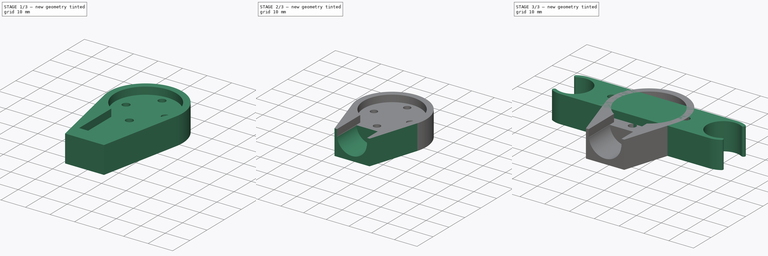
[diagram: build sequence overview — one tinted view per stage of 3, left to right]
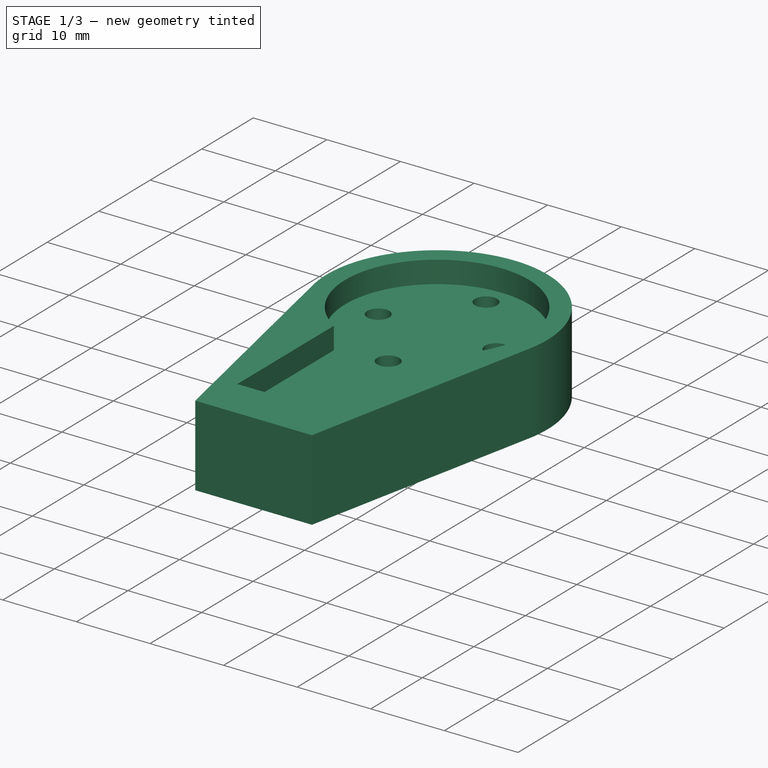
[diagram: stage 1 of 3 — iso view after this stage's code; geometry added in this stage tinted green]
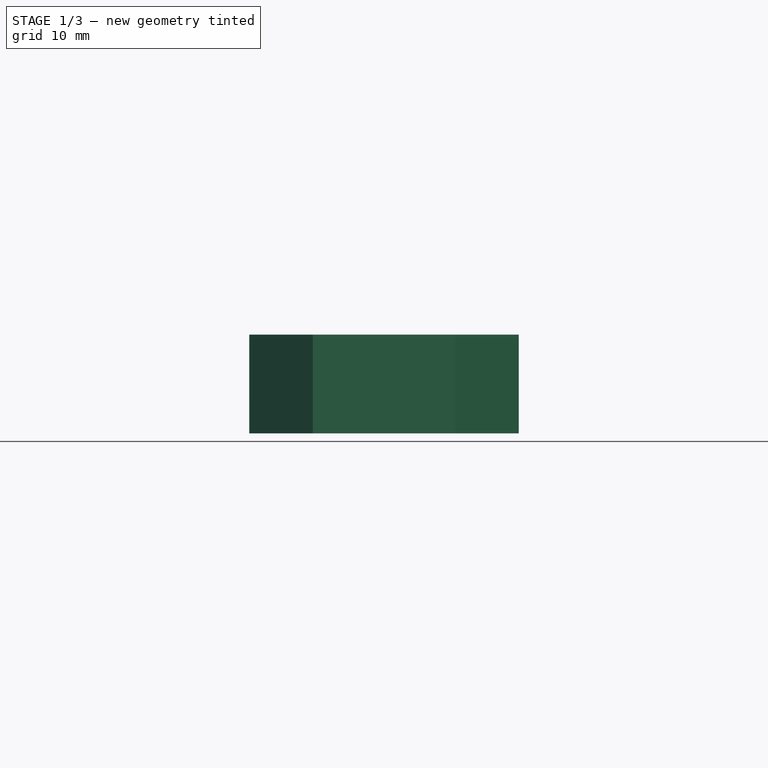
[diagram: stage 1 of 3 — front view after this stage's code; geometry added in this stage tinted green]
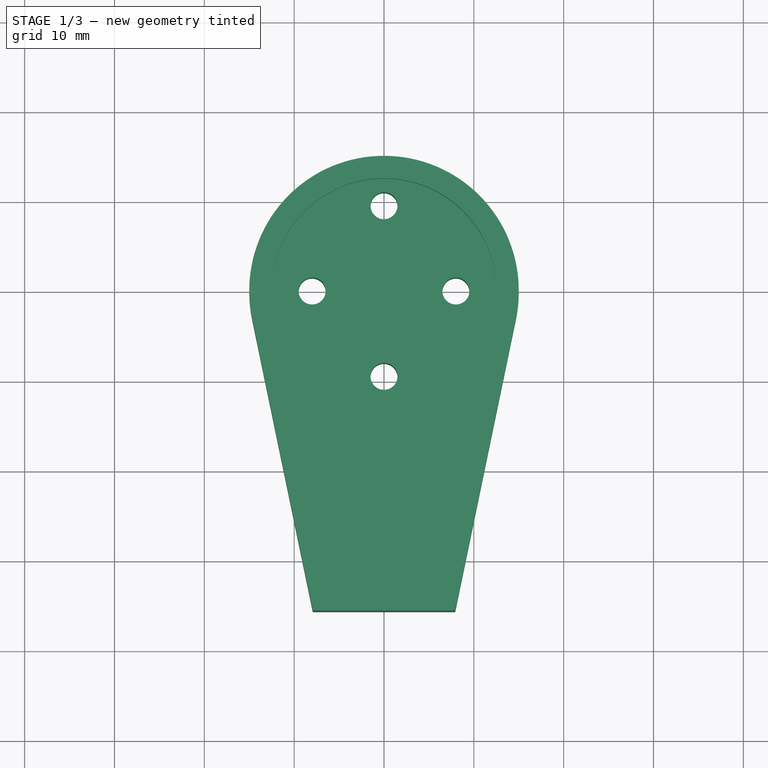
[diagram: stage 1 of 3 — top view after this stage's code; geometry added in this stage tinted green]
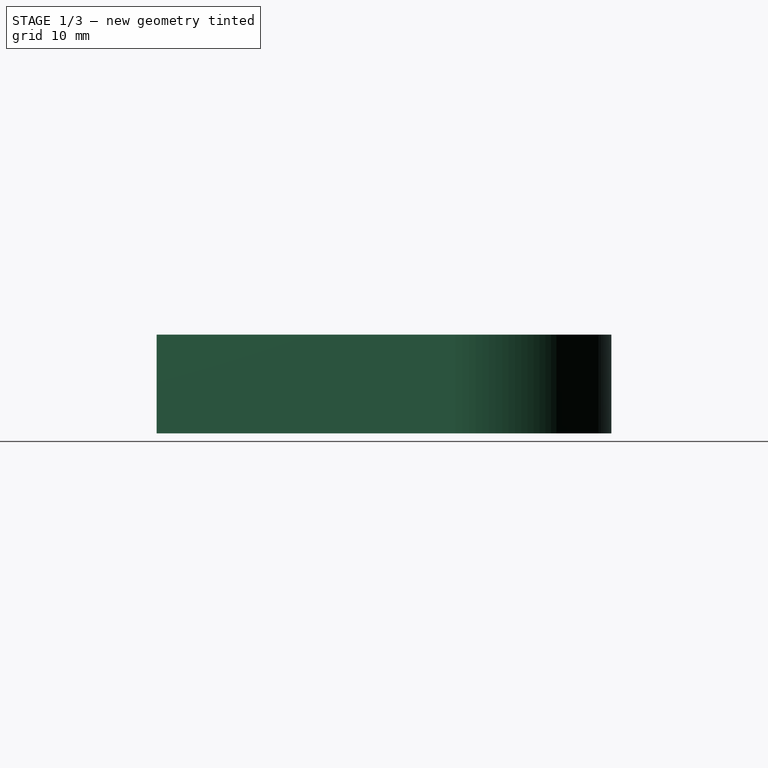
[diagram: stage 1 of 3 — right view after this stage's code; geometry added in this stage tinted green]
FCSTD DOCUMENT  (FreeCAD 1.1R14555 (Git shallow))
Label: drprt
License: All rights reserved
LicenseURL: http://en.wikipedia.org/wiki/All_rights_reserved
objects: Sketcher::SketchObject×6, App::Point×4, PartDesign::Body×4, PartDesign::Pad×3, PartDesign::Pocket×2
note: 31 computed .brp shape members not serialized (recipe doc carries the construction recipe); baked Part::Feature solids carry a one-line shape summary decoded from their .brp

FEATURE [App::Point] Origin001
  Role = Origin
FEATURE [Sketcher::SketchObject] Sketch
  ArcFitTolerance = 1e-06
  AttachmentSupport = -> [Origin]
  ExternalTypes = [0]
  FullyConstrained = false
  MakeInternals = false
  MapMode = 5
  sketch-geometry (18):
    g0: Circle [constr] CenterX=0 CenterY=0 CenterZ=0 NormalX=0 NormalY=0 NormalZ=1 AngleXU=0 Radius=8
    g1: Circle [constr] CenterX=0 CenterY=0 CenterZ=0 NormalX=0 NormalY=0 NormalZ=1 AngleXU=0 Radius=9.5
    g2: Circle [constr] CenterX=0 CenterY=0 CenterZ=0 NormalX=0 NormalY=0 NormalZ=1 AngleXU=0 Radius=25
    g3: Circle [constr] CenterX=0 CenterY=0 CenterZ=0 NormalX=0 NormalY=0 NormalZ=1 AngleXU=0 Radius=12.5
    g4: LineSegment [constr] StartX=-29.5503 StartY=0 StartZ=0 EndX=46.9819 EndY=0 EndZ=0
    g5: LineSegment [constr] StartX=0 StartY=29.8971 StartZ=0 EndX=0 EndY=-30.251 EndZ=0
    g6: Circle CenterX=-8 CenterY=0 CenterZ=0 NormalX=0 NormalY=0 NormalZ=1 AngleXU=0 Radius=1.5
    g7: Circle CenterX=8 CenterY=0 CenterZ=0 NormalX=0 NormalY=0 NormalZ=1 AngleXU=0 Radius=1.5
    g8: LineSegment [constr] StartX=0 StartY=29.8971 StartZ=0 EndX=0 EndY=-30.251 EndZ=0
    g9: Circle CenterX=0 CenterY=-9.5 CenterZ=0 NormalX=0 NormalY=0 NormalZ=1 AngleXU=0 Radius=1.5
    g10: Circle CenterX=0 CenterY=9.5 CenterZ=0 NormalX=0 NormalY=0 NormalZ=1 AngleXU=0 Radius=1.5
    g11: ArcOfCircle CenterX=0 CenterY=0 CenterZ=0 NormalX=0 NormalY=0 NormalZ=1 AngleXU=0 Radius=15 StartAngle=6.07867 EndAngle=9.62929
    g12: Circle [constr] CenterX=0 CenterY=-33.9752 CenterZ=0 NormalX=0 NormalY=0 NormalZ=1 AngleXU=0 Radius=6.6
    g13: ArcOfCircle [constr] CenterX=0 CenterY=-33.9752 CenterZ=0 NormalX=0 NormalY=0 NormalZ=1 AngleXU=0 Radius=8.1 StartAngle=6.07867 EndAngle=9.62929
    g14: LineSegment StartX=-14.6874 StartY=-3.04634 StartZ=0 EndX=-7.9312 EndY=-35.6203 EndZ=0
    g15: LineSegment StartX=14.6874 StartY=-3.04634 StartZ=0 EndX=7.9312 EndY=-35.6203 EndZ=0
    g16: LineSegment StartX=-7.9312 StartY=-35.6203 StartZ=0 EndX=7.9312 EndY=-35.6203 EndZ=0
    g17: Circle [constr] CenterX=0 CenterY=-17.8744 CenterZ=0 NormalX=0 NormalY=0 NormalZ=1 AngleXU=0 Radius=5.06673
  constraints (33):
    c: Coincident(g0,g-1)
    c: Coincident(g1,g0)
    c: Coincident(g2,g0)
    c: Diameter(g2) = 50
    c: Diameter(g1) = 19
    c: Diameter(g0) = 16
    c: Coincident(g3,g0)
    c: Diameter(g3) = 25
    c: PointOnObject(g4,g-1)
    c: PointOnObject(g4,g-1)
    c: PointOnObject(g5,g-2)
    c: PointOnObject(g5,g-2)
    c: PointOnObject(g6,g4)
    c: Diameter(g6) = 3
    c: PointOnObject(g6,g0)
    c: Diameter(g7) = 3
    c: PointOnObject(g9,g5)
    c: Diameter(g9) = 3
    c: PointOnObject(g9,g1)
    c: Diameter(g10) = 3
    c: Coincident(g11,g0)
    c: PointOnObject(g12,g-2)
    c: Coincident(g13,g12)
    c: Diameter(g12) = 13.2
    c: Coincident(g16,g14)
    c: Coincident(g16,g15)
    c: Tangent(g15,g13) = 1.5708
    c: Diameter(g13) = 16.2
    c: Tangent(g14,g13) = -1.5708
    c: Tangent(g14,g11) = -1.5708
    c: Diameter(g11) = 30
    c: Tangent(g15,g11) = 1.5708
    c: PointOnObject(g17,g5)
FEATURE [Sketcher::SketchObject] Sketch001  label="hold2"
  ArcFitTolerance = 1e-06
  AttachmentSupport = -> [Sketch]
  ExternalTypes = [0]
  FullyConstrained = false
  MakeInternals = false
  MapMode = 2
  sketch-geometry (18):
    g0: ArcOfCircle CenterX=30 CenterY=0 CenterZ=0 NormalX=0 NormalY=0 NormalZ=1 AngleXU=0 Radius=6.6 StartAngle=1.0472 EndAngle=5.23599
    g1: ArcOfCircle CenterX=-30 CenterY=1e-16 CenterZ=0 NormalX=0 NormalY=0 NormalZ=1 AngleXU=0 Radius=6.6 StartAngle=4.18879 EndAngle=8.37758
    g2: ArcOfCircle CenterX=-30 CenterY=1e-16 CenterZ=0 NormalX=0 NormalY=0 NormalZ=1 AngleXU=0 Radius=8.1 StartAngle=1.5708 EndAngle=2.0944
    g3: ArcOfCircle CenterX=30 CenterY=0 CenterZ=0 NormalX=0 NormalY=0 NormalZ=1 AngleXU=0 Radius=8.1 StartAngle=4.71239 EndAngle=5.23599
    g4: LineSegment StartX=-30 StartY=8.1 StartZ=0 EndX=30 EndY=8.1 EndZ=0
    g5: LineSegment StartX=-30 StartY=-8.1 StartZ=0 EndX=30 EndY=-8.1 EndZ=0
    g6: LineSegment [constr] StartX=-30 StartY=1e-16 StartZ=0 EndX=-37.9241 EndY=13.725 EndZ=0
    g7: LineSegment [constr] StartX=-30 StartY=1e-16 StartZ=0 EndX=-36.862 EndY=-11.8854 EndZ=0
    g8: LineSegment [constr] StartX=30 StartY=0 StartZ=0 EndX=34.781 EndY=8.28095 EndZ=0
    g9: LineSegment [constr] StartX=30 StartY=0 StartZ=0 EndX=36.0297 EndY=-10.4438 EndZ=0
    g10: ArcOfCircle CenterX=30 CenterY=0 CenterZ=0 NormalX=0 NormalY=0 NormalZ=1 AngleXU=0 Radius=8.1 StartAngle=1.0472 EndAngle=1.5708
    g11: ArcOfCircle CenterX=-30 CenterY=1e-16 CenterZ=0 NormalX=0 NormalY=0 NormalZ=1 AngleXU=0 Radius=8.1 StartAngle=4.18879 EndAngle=4.71239
    g12: ArcOfCircle CenterX=-33.675 CenterY=6.36529 CenterZ=0 NormalX=0 NormalY=0 NormalZ=1 AngleXU=0 Radius=0.75 StartAngle=2.0944 EndAngle=5.23599
    g13: ArcOfCircle CenterX=-33.675 CenterY=-6.36529 CenterZ=0 NormalX=0 NormalY=0 NormalZ=1 AngleXU=0 Radius=0.75 StartAngle=1.0472 EndAngle=4.18879
    g14: ArcOfCircle CenterX=33.675 CenterY=-6.36529 CenterZ=0 NormalX=0 NormalY=0 NormalZ=1 AngleXU=0 Radius=0.75 StartAngle=5.23599 EndAngle=8.37758
    g15: ArcOfCircle CenterX=33.675 CenterY=6.36529 CenterZ=0 NormalX=0 NormalY=0 NormalZ=1 AngleXU=0 Radius=0.75 StartAngle=4.18879 EndAngle=7.33038
    g16: Circle CenterX=-15 CenterY=0 CenterZ=0 NormalX=0 NormalY=0 NormalZ=1 AngleXU=0 Radius=1.5
    g17: Circle CenterX=15 CenterY=0 CenterZ=0 NormalX=0 NormalY=0 NormalZ=1 AngleXU=0 Radius=1.5
  constraints (46):
    c: PointOnObject(g0,g-1)
    c: DistanceX(g1,g0) = 60
    c: Symmetric(g1,g0,g-2)
    c: Coincident(g2,g1)
    c: Coincident(g3,g0)
    c: Horizontal(g4)
    c: Horizontal(g5)
    c: Coincident(g6,g1)
    c: Coincident(g7,g1)
    c: Coincident(g8,g0)
    c: Coincident(g9,g0)
    c: Angle(g-1,g8) = 1.0472
    c: Angle(g9,g-1) = 1.0472
    c: Angle(g6,g-1) = 1.0472
    c: Angle(g-1,g7) = 1.0472
    c: Tangent(g4,g2) = 1.5708
    c: Tangent(g5,g3) = -1.5708
    c: PointOnObject(g3,g9)
    c: PointOnObject(g10,g8)
    c: Coincident(g3,g10)
    c: PointOnObject(g0,g9)
    c: PointOnObject(g0,g8)
    c: Diameter(g2) = 16.2
    c: Equal(g2,g3)
    c: PointOnObject(g2,g6)
    c: PointOnObject(g11,g7)
    c: Coincident(g2,g11)
    c: Diameter(g1) = 13.2
    c: Equal(g1,g0)
    c: PointOnObject(g1,g6)
    c: PointOnObject(g1,g7)
    c: Tangent(g4,g10) = 1.5708
    c: Tangent(g5,g11) = -1.5708
    c: Coincident(g12,g1)
    c: Coincident(g13,g1)
    c: Coincident(g14,g3)
    c: Tangent(g15,g10) = -1.5708
    c: Tangent(g15,g0) = 1.5708
    c: Tangent(g14,g0) = 1.5708
    c: Tangent(g12,g2) = -1.5708
    c: Tangent(g13,g11) = -1.5708
    c: PointOnObject(g16,g-1)
    c: Diameter(g16) = 3
    c: Equal(g17,g16)
    c: DistanceX(g16,g17) = 30
    c: Symmetric(g16,g17,g-1)
FEATURE [Sketcher::SketchObject] Sketch002  label="hold1"
  ArcFitTolerance = 1e-06
  AttachmentSupport = -> [Sketch]
  ExternalTypes = [0]
  FullyConstrained = false
  MakeInternals = false
  MapMode = 2
  sketch-geometry (21):
    g0: ArcOfCircle [constr] CenterX=30 CenterY=0 CenterZ=0 NormalX=0 NormalY=0 NormalZ=1 AngleXU=0 Radius=6.6 StartAngle=1.0472 EndAngle=5.23599
    g1: ArcOfCircle CenterX=-30 CenterY=1e-16 CenterZ=0 NormalX=0 NormalY=0 NormalZ=1 AngleXU=0 Radius=6.6 StartAngle=4.18879 EndAngle=8.37758
    g2: ArcOfCircle CenterX=-30 CenterY=1e-16 CenterZ=0 NormalX=0 NormalY=0 NormalZ=1 AngleXU=0 Radius=8.1 StartAngle=1.5708 EndAngle=2.0944
    g3: ArcOfCircle [constr] CenterX=30 CenterY=0 CenterZ=0 NormalX=0 NormalY=0 NormalZ=1 AngleXU=0 Radius=8.1 StartAngle=4.71239 EndAngle=5.23599
    g4: LineSegment [constr] StartX=-30 StartY=8.1 StartZ=0 EndX=30 EndY=8.1 EndZ=0
    g5: LineSegment [constr] StartX=-30 StartY=-8.1 StartZ=0 EndX=30 EndY=-8.1 EndZ=0
    g6: LineSegment [constr] StartX=-30 StartY=1e-16 StartZ=0 EndX=-37.9241 EndY=13.725 EndZ=0
    g7: LineSegment [constr] StartX=-30 StartY=1e-16 StartZ=0 EndX=-36.862 EndY=-11.8854 EndZ=0
    g8: LineSegment [constr] StartX=30 StartY=0 StartZ=0 EndX=34.781 EndY=8.28095 EndZ=0
    g9: LineSegment [constr] StartX=30 StartY=0 StartZ=0 EndX=36.0297 EndY=-10.4438 EndZ=0
    g10: ArcOfCircle [constr] CenterX=30 CenterY=0 CenterZ=0 NormalX=0 NormalY=0 NormalZ=1 AngleXU=0 Radius=8.1 StartAngle=1.0472 EndAngle=1.5708
    g11: ArcOfCircle CenterX=-30 CenterY=1e-16 CenterZ=0 NormalX=0 NormalY=0 NormalZ=1 AngleXU=0 Radius=8.1 StartAngle=4.18879 EndAngle=4.71239
    g12: ArcOfCircle CenterX=-33.675 CenterY=6.36529 CenterZ=0 NormalX=0 NormalY=0 NormalZ=1 AngleXU=0 Radius=0.75 StartAngle=2.0944 EndAngle=5.23599
    g13: ArcOfCircle CenterX=-33.675 CenterY=-6.36529 CenterZ=0 NormalX=0 NormalY=0 NormalZ=1 AngleXU=0 Radius=0.75 StartAngle=1.0472 EndAngle=4.18879
    g14: ArcOfCircle [constr] CenterX=33.675 CenterY=-6.36529 CenterZ=0 NormalX=0 NormalY=0 NormalZ=1 AngleXU=0 Radius=0.75 StartAngle=5.23599 EndAngle=8.37758
    g15: ArcOfCircle [constr] CenterX=33.675 CenterY=6.36529 CenterZ=0 NormalX=0 NormalY=0 NormalZ=1 AngleXU=0 Radius=0.75 StartAngle=4.18879 EndAngle=7.33038
    g16: Circle CenterX=-19 CenterY=0 CenterZ=0 NormalX=0 NormalY=0 NormalZ=1 AngleXU=0 Radius=1.5
    g17: Circle CenterX=-4 CenterY=0 CenterZ=0 NormalX=0 NormalY=0 NormalZ=1 AngleXU=0 Radius=1.5
    g18: LineSegment StartX=0 StartY=8.1 StartZ=0 EndX=0 EndY=-8.1 EndZ=0
    g19: LineSegment StartX=-30 StartY=8.1 StartZ=0 EndX=0 EndY=8.1 EndZ=0
    g20: LineSegment StartX=-30 StartY=-8.1 StartZ=0 EndX=0 EndY=-8.1 EndZ=0
  constraints (56):
    c: PointOnObject(g0,g-1)
    c: DistanceX(g1,g0) = 60
    c: Symmetric(g1,g0,g-2)
    c: Coincident(g2,g1)
    c: Coincident(g3,g0)
    c: Horizontal(g4)
    c: Horizontal(g5)
    c: Coincident(g6,g1)
    c: Coincident(g7,g1)
    c: Coincident(g8,g0)
    c: Coincident(g9,g0)
    c: Angle(g-1,g8) = 1.0472
    c: Angle(g9,g-1) = 1.0472
    c: Angle(g6,g-1) = 1.0472
    c: Angle(g-1,g7) = 1.0472
    c: Tangent(g4,g2) = 1.5708
    c: Tangent(g5,g3) = -1.5708
    c: PointOnObject(g3,g9)
    c: PointOnObject(g10,g8)
    c: Coincident(g3,g10)
    c: PointOnObject(g0,g9)
    c: PointOnObject(g0,g8)
    c: Diameter(g2) = 16.2
    c: Equal(g2,g3)
    c: PointOnObject(g2,g6)
    c: PointOnObject(g11,g7)
    c: Coincident(g2,g11)
    c: Diameter(g1) = 13.2
    c: Equal(g1,g0)
    c: PointOnObject(g1,g6)
    c: PointOnObject(g1,g7)
    c: Tangent(g4,g10) = 1.5708
    c: Tangent(g5,g11) = -1.5708
    c: Coincident(g12,g1)
    c: Coincident(g13,g1)
    c: Coincident(g14,g3)
    c: Tangent(g15,g10) = -1.5708
    c: Tangent(g15,g0) = 1.5708
    c: Tangent(g14,g0) = 1.5708
    c: Tangent(g12,g2) = -1.5708
    c: Tangent(g13,g11) = -1.5708
    c: PointOnObject(g16,g-1)
    c: Diameter(g16) = 3
    c: Equal(g17,g16)
    c: DistanceX(g16,g17) = 15
    c: Symmetric(g16,g17,g-1)
    c: PointOnObject(g18,g5)
    c: DistanceX(g17,g-1) = 4
    c: PointOnObject(g17,g-1)
    c: Tangent(g19,g2) = 1.5708
    c: Coincident(g19,g18)
    c: Coincident(g20,g5)
    c: Coincident(g20,g18)
    c: Horizontal(g20)
    c: Tangent(g20,g11)
    c: Block(g18)
FEATURE [Sketcher::SketchObject] Sketch003  label="holdtip"
  ArcFitTolerance = 1e-06
  AttachmentSupport = -> [Sketch]
  ExternalTypes = [0]
  FullyConstrained = false
  MakeInternals = false
  MapMode = 2
  sketch-geometry (16):
    g0: ArcOfCircle [constr] CenterX=15 CenterY=0 CenterZ=0 NormalX=0 NormalY=0 NormalZ=1 AngleXU=0 Radius=6.6 StartAngle=1.0472 EndAngle=5.23599
    g1: ArcOfCircle CenterX=-15 CenterY=0 CenterZ=0 NormalX=0 NormalY=0 NormalZ=1 AngleXU=0 Radius=6.6 StartAngle=3.14716 EndAngle=9.43035
    g2: ArcOfCircle CenterX=-15 CenterY=0 CenterZ=0 NormalX=0 NormalY=0 NormalZ=1 AngleXU=0 Radius=8.1 StartAngle=1.5708 EndAngle=4.71239
    g3: ArcOfCircle [constr] CenterX=15 CenterY=0 CenterZ=0 NormalX=0 NormalY=0 NormalZ=1 AngleXU=0 Radius=8.1 StartAngle=4.71239 EndAngle=5.23599
    g4: LineSegment [constr] StartX=-15 StartY=8.1 StartZ=0 EndX=15 EndY=8.1 EndZ=0
    g5: LineSegment [constr] StartX=-15 StartY=-8.1 StartZ=0 EndX=15 EndY=-8.1 EndZ=0
    g6: LineSegment [constr] StartX=15 StartY=0 StartZ=0 EndX=23.3018 EndY=14.3791 EndZ=0
    g7: LineSegment [constr] StartX=15 StartY=0 StartZ=0 EndX=20.9929 EndY=-10.38 EndZ=0
    g8: ArcOfCircle [constr] CenterX=15 CenterY=0 CenterZ=0 NormalX=0 NormalY=0 NormalZ=1 AngleXU=0 Radius=8.1 StartAngle=1.0472 EndAngle=1.5708
    g9: ArcOfCircle [constr] CenterX=18.675 CenterY=-6.36529 CenterZ=0 NormalX=0 NormalY=0 NormalZ=1 AngleXU=0 Radius=0.75 StartAngle=5.23599 EndAngle=8.37758
    g10: ArcOfCircle [constr] CenterX=18.675 CenterY=6.36529 CenterZ=0 NormalX=0 NormalY=0 NormalZ=1 AngleXU=0 Radius=0.75 StartAngle=4.18879 EndAngle=7.33038
    g11: Circle [constr] CenterX=-19 CenterY=0 CenterZ=0 NormalX=0 NormalY=0 NormalZ=1 AngleXU=0 Radius=1.5
    g12: Circle CenterX=-4 CenterY=0 CenterZ=0 NormalX=0 NormalY=0 NormalZ=1 AngleXU=0 Radius=1.5
    g13: LineSegment StartX=0 StartY=8.1 StartZ=0 EndX=0 EndY=-8.1 EndZ=0
    g14: LineSegment StartX=-15 StartY=8.1 StartZ=0 EndX=0 EndY=8.1 EndZ=0
    g15: LineSegment StartX=-15 StartY=-8.1 StartZ=0 EndX=0 EndY=-8.1 EndZ=0
  constraints (41):
    c: PointOnObject(g0,g-1)
    c: DistanceX(g1,g0) = 30
    c: Symmetric(g1,g0,g-2)
    c: Coincident(g2,g1)
    c: Coincident(g3,g0)
    c: Horizontal(g4)
    c: Horizontal(g5)
    c: Coincident(g6,g0)
    c: Coincident(g7,g0)
    c: Angle(g-1,g6) = 1.0472
    c: Angle(g7,g-1) = 1.0472
    c: Tangent(g4,g2) = 1.5708
    c: Tangent(g5,g3) = -1.5708
    c: PointOnObject(g3,g7)
    c: PointOnObject(g8,g6)
    c: Coincident(g3,g8)
    c: PointOnObject(g0,g7)
    c: PointOnObject(g0,g6)
    c: Diameter(g2) = 16.2
    c: Equal(g2,g3)
    c: Diameter(g1) = 13.2
    c: Equal(g1,g0)
    c: Tangent(g4,g8) = 1.5708
    c: Coincident(g9,g3)
    c: Tangent(g10,g8) = -1.5708
    c: Tangent(g10,g0) = 1.5708
    c: Tangent(g9,g0) = 1.5708
    c: PointOnObject(g11,g-1)
    c: Diameter(g11) = 3
    c: Equal(g12,g11)
    c: DistanceX(g11,g12) = 15
    c: Symmetric(g11,g12,g-1)
    c: PointOnObject(g13,g5)
    c: DistanceX(g12,g-1) = 4
    c: PointOnObject(g12,g-1)
    c: Tangent(g14,g2) = 1.5708
    c: Coincident(g14,g13)
    c: Coincident(g15,g5)
    c: Coincident(g15,g13)
    c: Block(g13)
    c: Coincident(g2,g5)
FEATURE [PartDesign::Pad] Pad
  Direction = (0,0,1)
  Length = 11
  Length2 = 10
  Profile = -> Sketch
  ReferenceAxis = -> Sketch [N_Axis]
  Refine = true
  SideType = 0
  Suppressed = false
  Type = 0
  Type2 = 0
FEATURE [PartDesign::Body] Body003  label="Arm rotate"
  AllowCompound = false
  Group = -> [Sketch003,Pad002]
  Origin = -> Origin010
  Tip = -> Pad002
FEATURE [Sketcher::SketchObject] Sketch004
  ArcFitTolerance = 1e-06
  AttachmentSupport = -> [Pad]
  ExternalTypes = [0]
  FullyConstrained = false
  MakeInternals = false
  MapMode = 5
  Placement = pos=(0,0,11) rot=(0,0,1;0rad)
  sketch-geometry (6):
    g0: Circle CenterX=0 CenterY=0 CenterZ=0 NormalX=0 NormalY=0 NormalZ=1 AngleXU=0 Radius=12.5
    g1: LineSegment StartX=-6.6 StartY=-29.3395 StartZ=0 EndX=6.6 EndY=-29.3395 EndZ=0
    g2: LineSegment StartX=6.6 StartY=-29.3395 StartZ=0 EndX=6.6 EndY=4.33954 EndZ=0
    g3: LineSegment StartX=6.6 StartY=4.33954 StartZ=0 EndX=-6.6 EndY=4.33954 EndZ=0
    g4: LineSegment StartX=-6.6 StartY=4.33954 StartZ=0 EndX=-6.6 EndY=-29.3395 EndZ=0
    g5: GeomPoint [constr] X=0 Y=-12.5 Z=0
  constraints (14):
    c: Coincident(g0,g-1)
    c: Coincident(g1,g2)
    c: Coincident(g2,g3)
    c: Coincident(g3,g4)
    c: Coincident(g4,g1)
    c: Horizontal(g1)
    c: Horizontal(g3)
    c: Vertical(g2)
    c: Vertical(g4)
    c: Symmetric(g3,g1,g5)
    c: PointOnObject(g5,g0)
    c: DistanceX(g3,g3) = 13.2
    c: Diameter(g0) = 25
    c: PointOnObject(g5,g-2)
FEATURE [PartDesign::Pocket] Pocket
  BaseFeature = -> Pad
  Direction = (0,0,-1)
  Length = 3
  Length2 = 5
  Profile = -> Sketch004
  ReferenceAxis = -> Sketch004 [N_Axis]
  Refine = true
  SideType = 0
  Suppressed = false
  Type = 0
  Type2 = 0
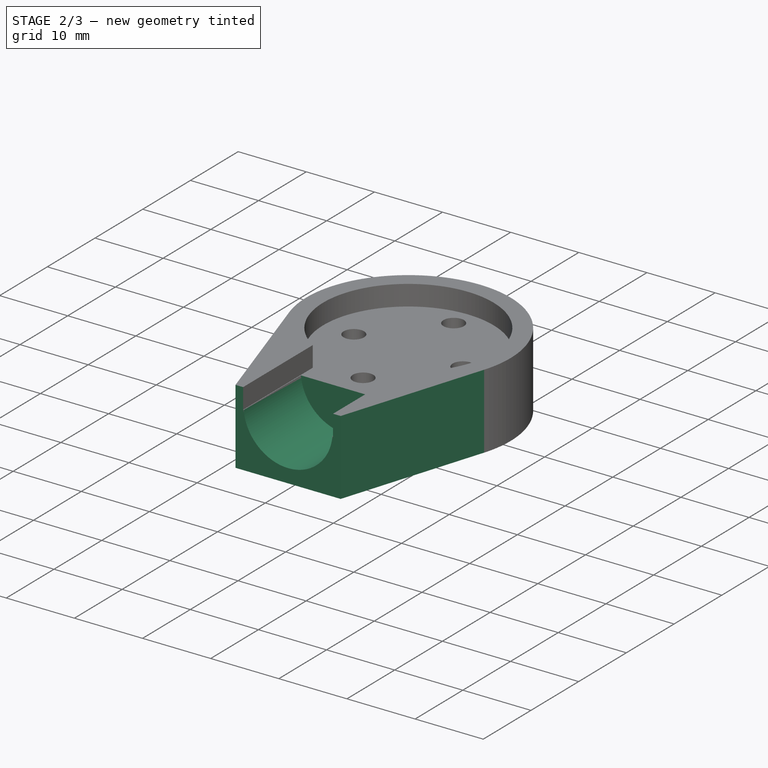
[diagram: stage 2 of 3 — iso view after this stage's code; geometry added in this stage tinted green]
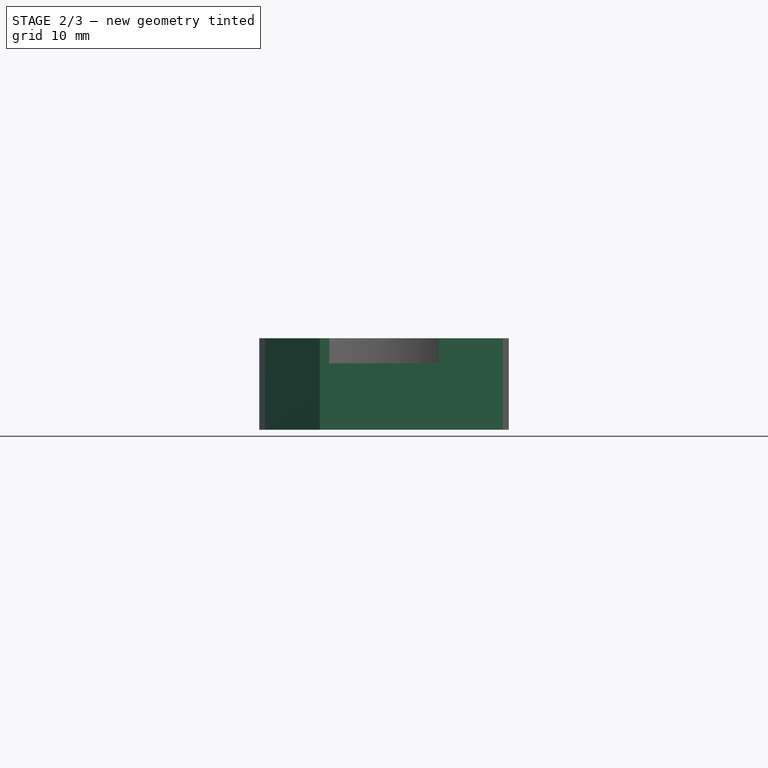
[diagram: stage 2 of 3 — front view after this stage's code; geometry added in this stage tinted green]
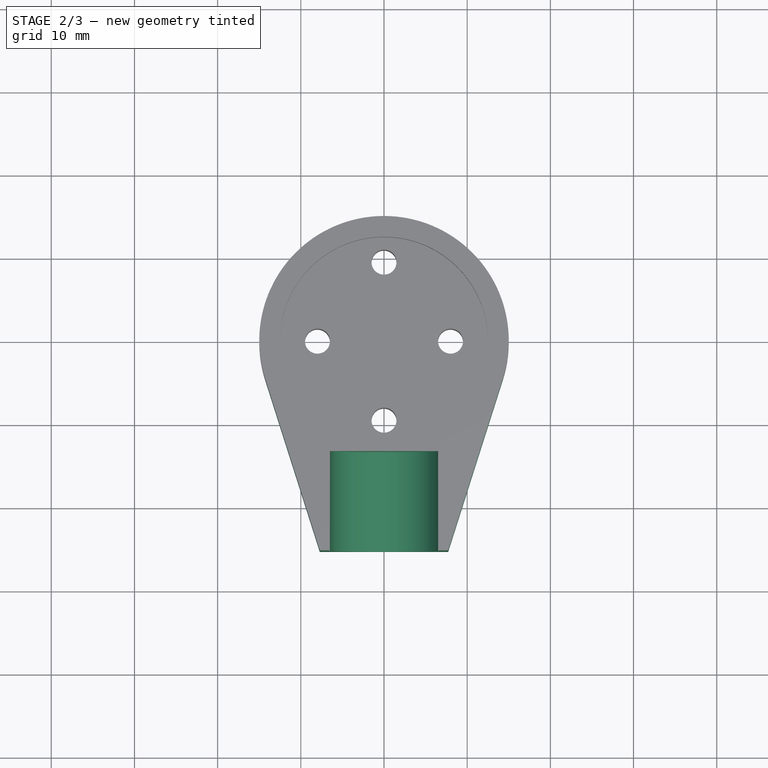
[diagram: stage 2 of 3 — top view after this stage's code; geometry added in this stage tinted green]
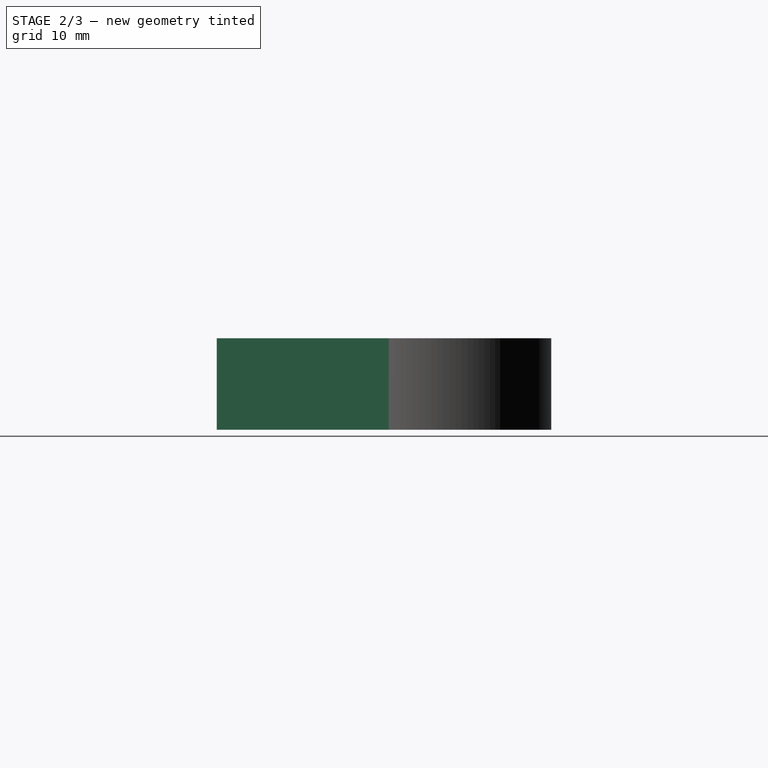
[diagram: stage 2 of 3 — right view after this stage's code; geometry added in this stage tinted green]
FEATURE [Sketcher::SketchObject] Sketch005
  ArcFitTolerance = 1e-06
  AttachmentSupport = -> [Pocket]
  ExternalTypes = [0]
  FullyConstrained = false
  MakeInternals = false
  MapMode = 5
  Placement = pos=(1.16e-14,-25.2157,0) rot=(1,0,0;1.5708rad)
  sketch-geometry (1):
    g0: Circle CenterX=0 CenterY=8.5528 CenterZ=0 NormalX=0 NormalY=0 NormalZ=1 AngleXU=0 Radius=6.53238
  constraints (1):
    c: PointOnObject(g0,g-2)
FEATURE [PartDesign::Pocket] Pocket001
  BaseFeature = -> Pocket
  Direction = (0,1,-2e-16)
  Length = 12
  Length2 = 5
  Profile = -> Sketch005
  ReferenceAxis = -> Sketch005 [N_Axis]
  Refine = true
  SideType = 0
  Suppressed = false
  Type = 0
  Type2 = 0
FEATURE [PartDesign::Body] Body
  AllowCompound = false
  Group = -> [Sketch,Pad,Sketch004,Pocket,Sketch005,Pocket001]
  Origin = -> Origin
  Tip = -> Pocket001
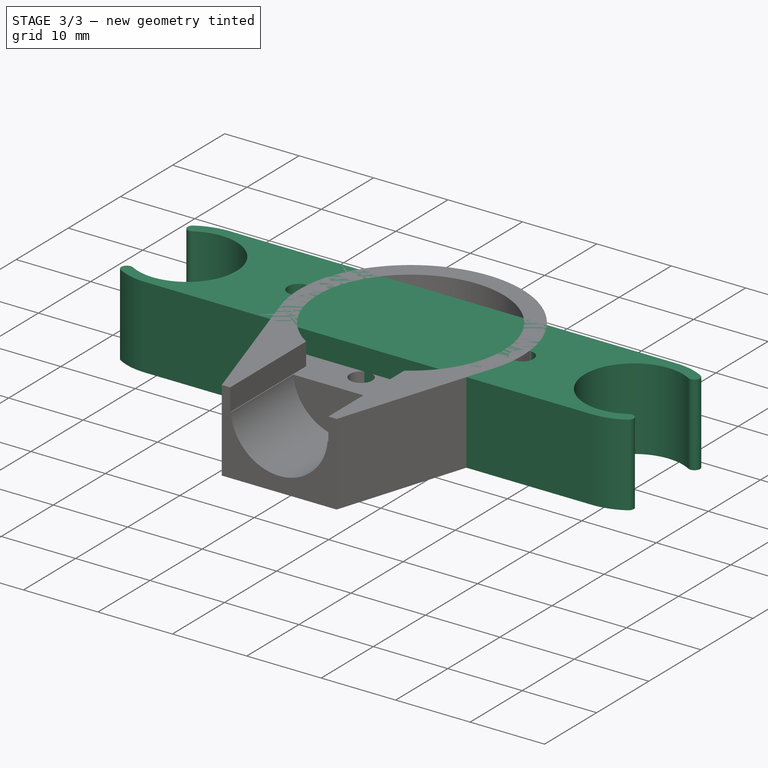
[diagram: stage 3 of 3 — iso view after this stage's code; geometry added in this stage tinted green]
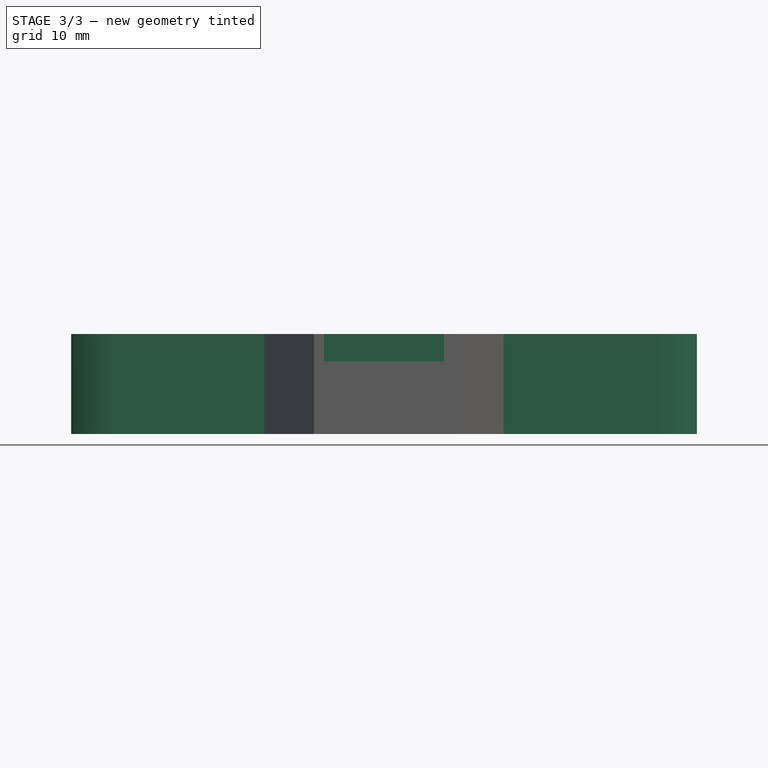
[diagram: stage 3 of 3 — front view after this stage's code; geometry added in this stage tinted green]
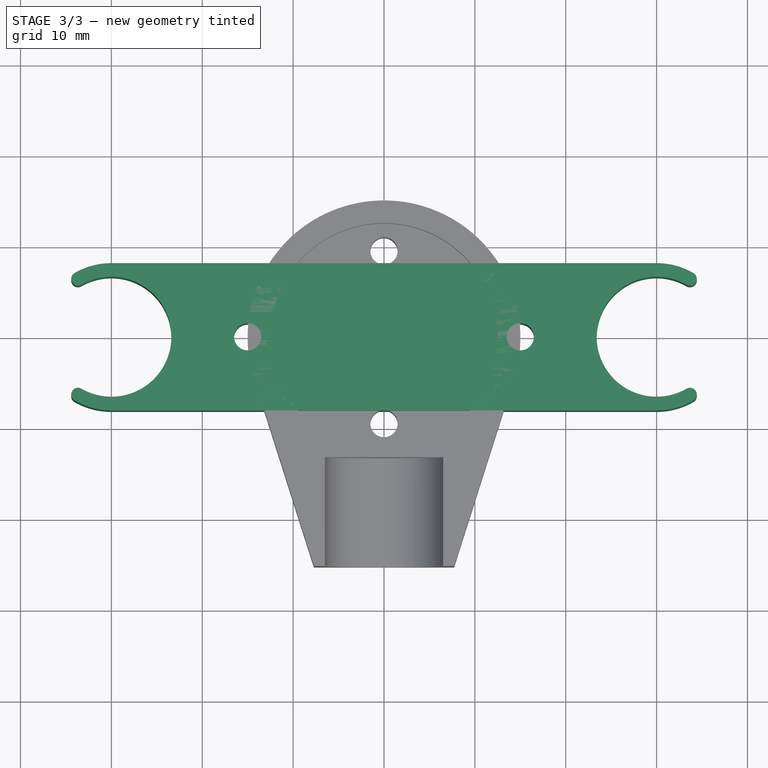
[diagram: stage 3 of 3 — top view after this stage's code; geometry added in this stage tinted green]
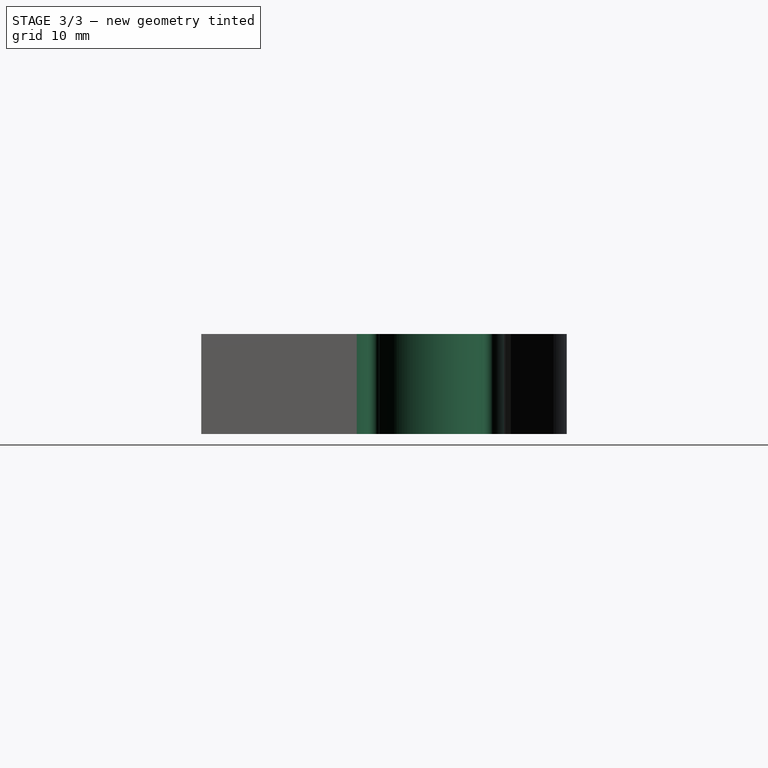
[diagram: stage 3 of 3 — right view after this stage's code; geometry added in this stage tinted green]
FEATURE [App::Point] Origin007
  Role = Origin
FEATURE [PartDesign::Pad] Pad001
  Direction = (0,0,1)
  Length = 11
  Length2 = 10
  Profile = -> Sketch001
  ReferenceAxis = -> Sketch001 [N_Axis]
  Refine = true
  SideType = 0
  Suppressed = false
  Type = 0
  Type2 = 0
FEATURE [PartDesign::Body] Body001
  AllowCompound = false
  Group = -> [Sketch001,Pad001]
  Origin = -> Origin006
  Tip = -> Pad001
FEATURE [PartDesign::Body] Body002
  AllowCompound = false
  Group = -> [Sketch002]
  Origin = -> Origin008
FEATURE [App::Point] Origin009
  Role = Origin
FEATURE [App::Point] Origin011
  Role = Origin
FEATURE [PartDesign::Pad] Pad002
  Direction = (0,0,1)
  Length = 11
  Length2 = 10
  Profile = -> Sketch003
  ReferenceAxis = -> Sketch003 [N_Axis]
  Refine = true
  SideType = 0
  Suppressed = false
  Type = 0
  Type2 = 0
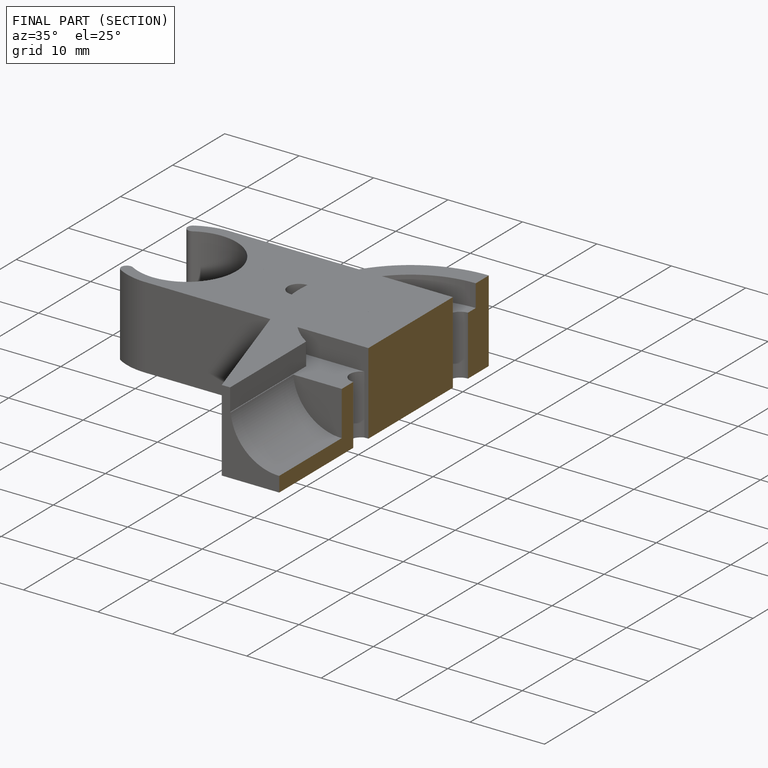
[diagram: finished part — half-section view (interior)]
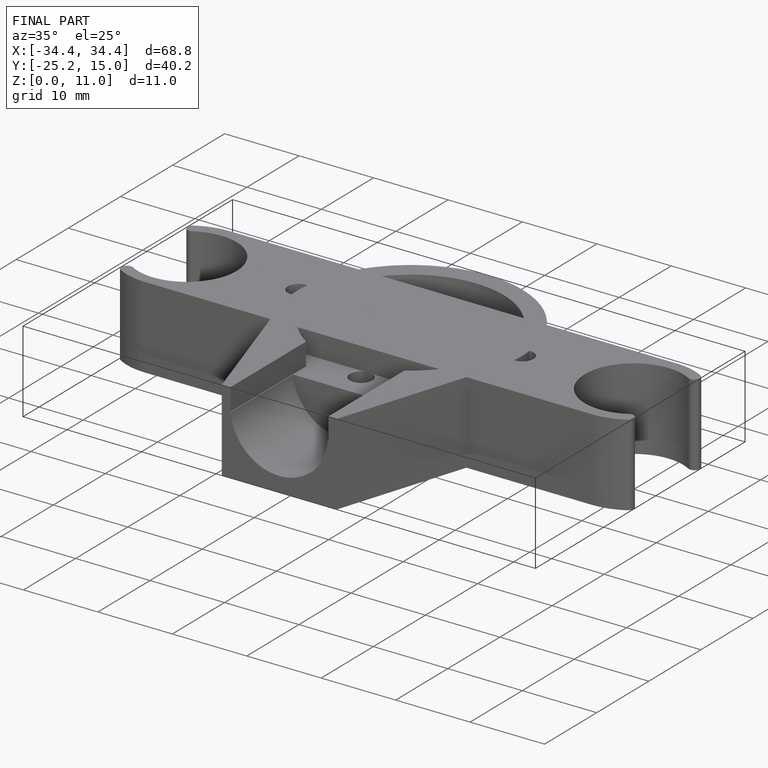
[diagram: finished part — iso view with bounding-box wireframe]
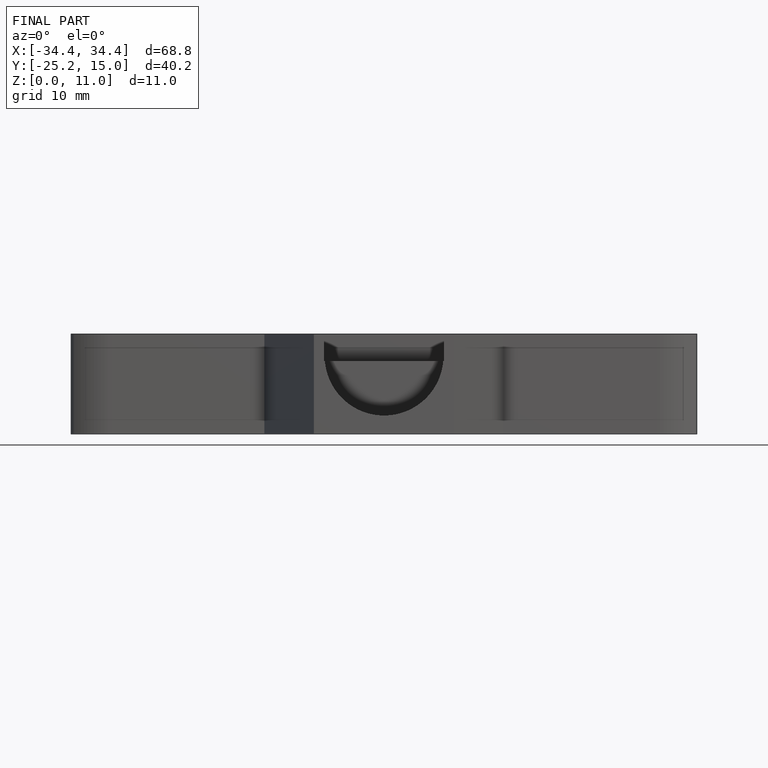
[diagram: finished part — front view with bounding-box wireframe]
